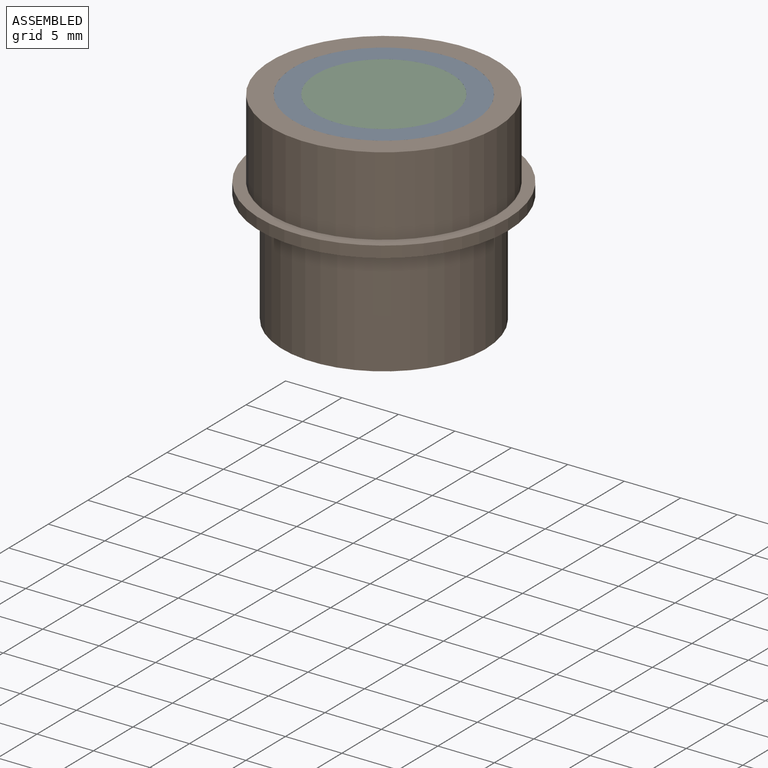
[diagram: assembled view]
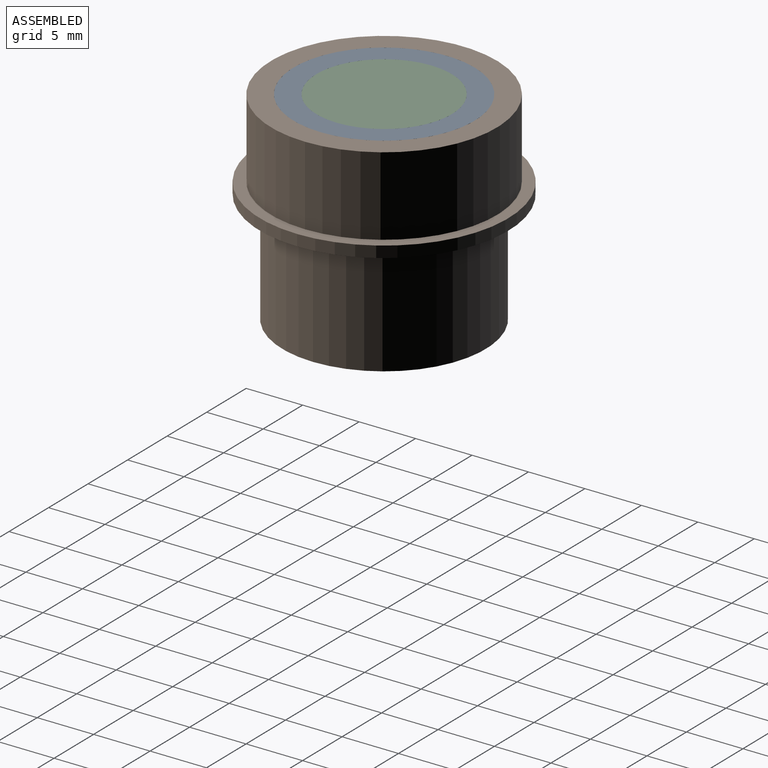
[diagram: assembled view, second angle]
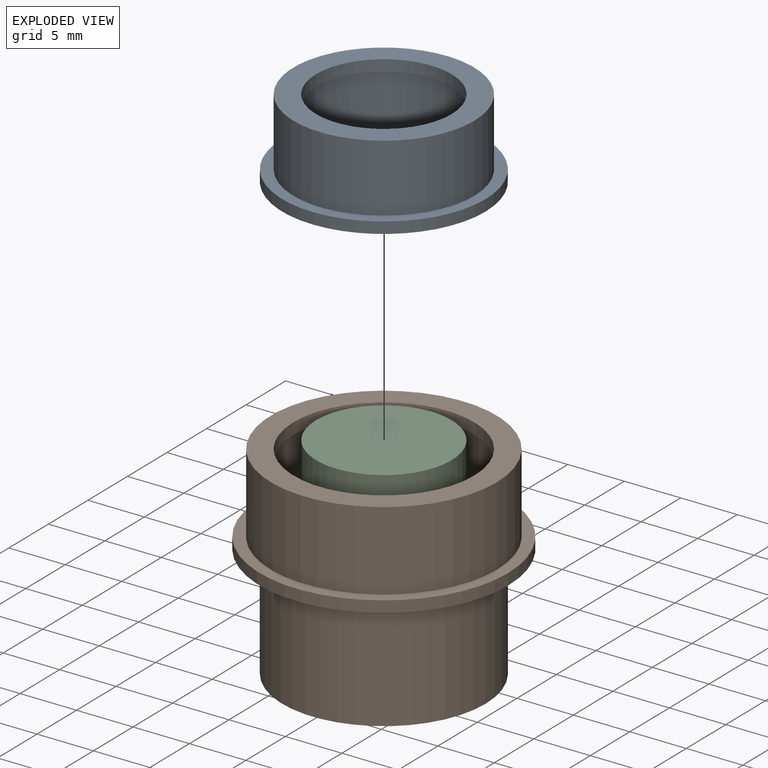
[diagram: exploded view]
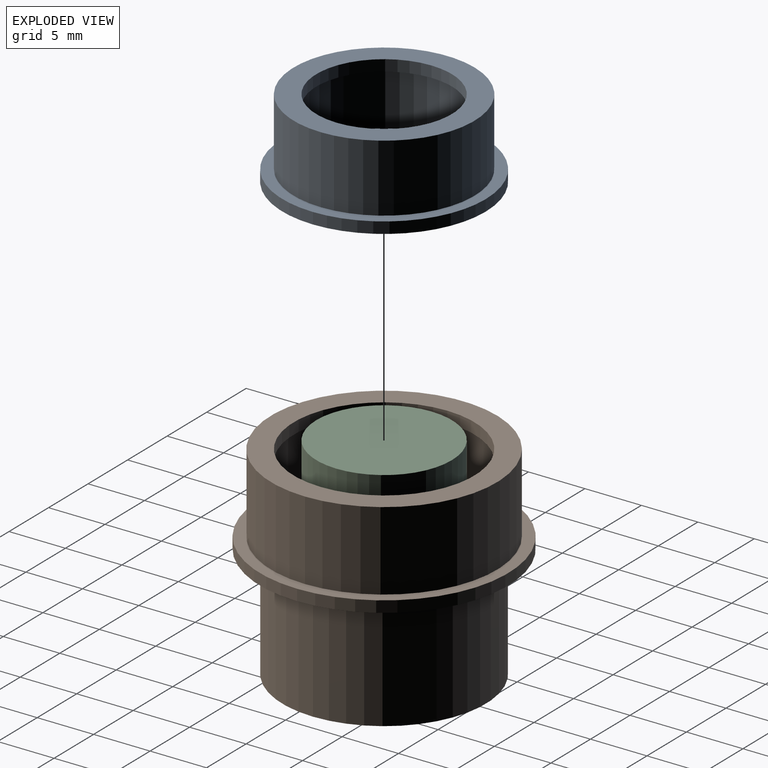
[diagram: exploded view, second angle]
ASSEMBLY  parts=3 mates=4
PART A: 9 faces, bbox 18x18x7 mm
  f0: cylinder r=8mm len=16mm, axis (0,0,-1), area 301.6mm2, adj f1,f5
  f1: plane 16x16mm, normal (0,0,1), area 88mm2, adj f0,f4
  f2: cylinder r=7mm len=14mm, axis (0,0,-1), area 219.9mm2, adj f3,f8
  f3: plane 14x14mm, normal (0,0,-1), area 40.8mm2, adj f2,f4
  f4: cylinder r=6mm len=12mm, axis (0,0,1), area 37.7mm2, adj f1,f3
  f5: plane 18x18mm, normal (0,0,1), area 53.4mm2, adj f0,f7
  f6: plane 18x18mm, normal (0,0,-1), area 254.5mm2, adj f7
  f7: cylinder r=9mm len=18mm, axis (0,0,1), area 56.5mm2, adj f5,f6
  f8: plane 14x14mm, normal (0,0,1), area 153.9mm2, adj f2
PART B: 11 faces, bbox 22x22x18 mm
  f0: cylinder r=10mm len=20mm, axis (0,0,-1), area 439.8mm2, adj f1,f5
  f1: plane 20x20mm, normal (0,0,1), area 113.1mm2, adj f0,f4
  f2: cylinder r=9mm len=18mm, axis (0,0,-1), area 339.3mm2, adj f3,f8
  f3: plane 18x18mm, normal (0,0,-1), area 53.4mm2, adj f2,f4
  f4: cylinder r=8mm len=16mm, axis (0,0,1), area 50.3mm2, adj f1,f3
  f5: plane 22x22mm, normal (0,0,1), area 66mm2, adj f0,f7
  f6: plane 22x22mm, normal (0,0,-1), area 125.7mm2, adj f7,f9
  f7: cylinder r=11mm len=22mm, axis (0,0,1), area 69.1mm2, adj f5,f6
  f8: plane 18x18mm, normal (0,0,1), area 254.5mm2, adj f2
  f9: cylinder r=9mm len=18mm, axis (0,0,1), area 565.5mm2, adj f6,f10
  f10: plane 18x18mm, normal (0,0,-1), area 254.5mm2, adj f9
PART C: 8 faces, bbox 14x14x6 mm
  f0: cylinder r=7mm len=14mm, axis (0,0,1), area 44mm2, adj f1,f2
  f1: plane 14x14mm, normal (0,0,-1), area 153.9mm2, adj f0
  f2: plane 14x14mm, normal (0,0,1), area 40.8mm2, adj f0,f4
  f3: plane 12x12mm, normal (0,0,1), area 113.1mm2, adj f4
  f4: cylinder r=6mm len=12mm, axis (0,0,-1), area 188.5mm2, adj f2,f3
  f5: cylinder r=5mm len=10mm, axis (0,0,-1), area 125.7mm2, adj f6,f7
  f6: plane 10x10mm, normal (0,0,-1), area 78.5mm2, adj f5
  f7: plane 10x10mm, normal (0,0,1), area 78.5mm2, adj f5
PLACE A t=(-24.66,11.97,1.2)mm
PLACE B t=(-24.66,11.97,0.2)mm
PLACE C t=(-24.66,11.97,2.2)mm
MATE revolute B.f2 <-> A.f7  axis (0,0,1) through (-24.66,11.97,0.2)mm
MATE slider C.f0 <-> A.f2  axis (0,0,1) through (-24.66,11.97,1.2)mm
MATE slider A.f7 <-> B.f2  axis (0,0,1) through (-24.66,11.97,0.2)mm
MATE revolute C.f0 <-> A.f2  axis (0,0,1) through (-24.66,11.97,1.2)mm
